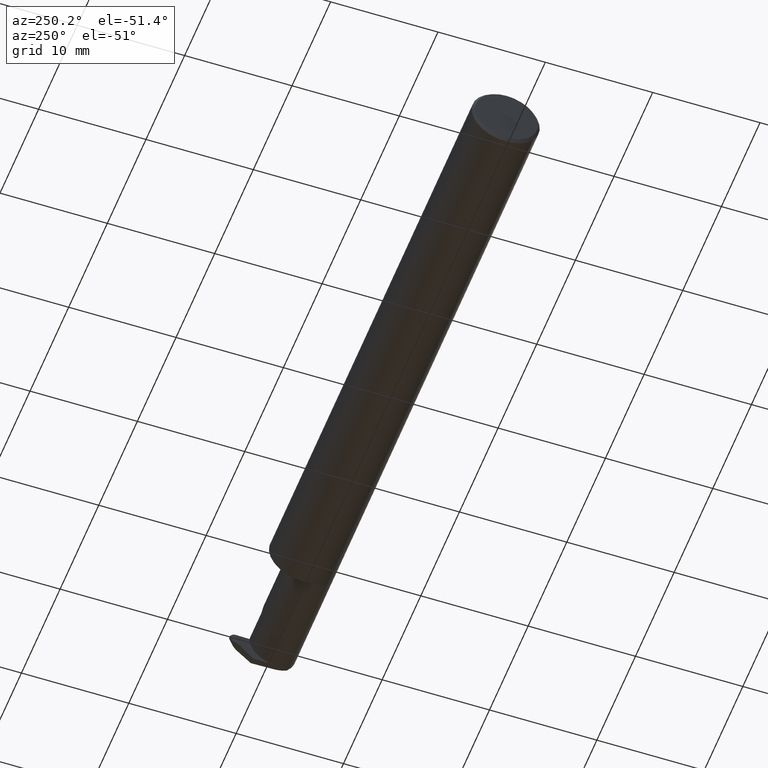
[diagram: clean part render]
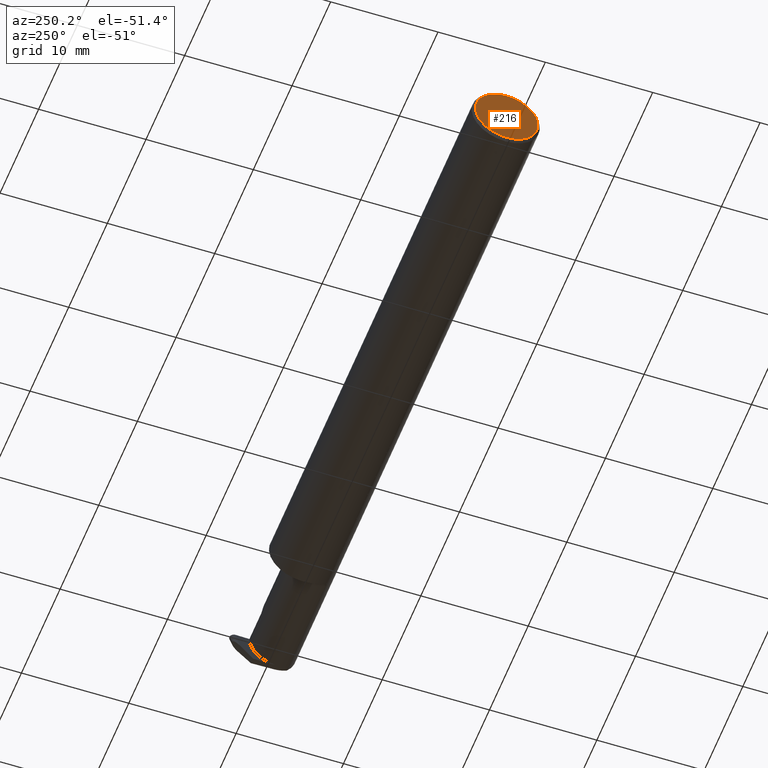
[diagram: same view with one face highlighted and labeled with its STEP entity id]
A machine part, auxiliary view. The second image highlights one B-rep face of the part: STEP entity #216.
In plain terms, the highlighted planar face has unit normal (1, 0, 0).
Its self-contained STEP definition (entity closure, byte-faithful):
#11 = EDGE_CURVE ( 'NONE', #380, #381, #247, .T. ) ;
#50 = PLANE ( 'NONE',  #330 ) ;
#52 = DIRECTION ( 'NONE',  ( -1.000000000000000000, -0.000000000000000000, -0.000000000000000000 ) ) ;
#197 = ORIENTED_EDGE ( 'NONE', *, *, #11, .T. ) ;
#216 = ADVANCED_FACE ( 'NONE', ( #404 ), #50, .F. ) ;
#220 = EDGE_LOOP ( 'NONE', ( #418, #197 ) ) ;
#247 = CIRCLE ( 'NONE', #258, 0.1149999999999997274 ) ;
#258 = AXIS2_PLACEMENT_3D ( 'NONE', #430, #52, #474 ) ;
#280 = DIRECTION ( 'NONE',  ( -1.000000000000000000, -0.000000000000000000, -0.000000000000000000 ) ) ;
#330 = AXIS2_PLACEMENT_3D ( 'NONE', #547, #352, #792 ) ;
#345 = DIRECTION ( 'NONE',  ( 0.000000000000000000, 0.000000000000000000, -1.000000000000000000 ) ) ;
#352 = DIRECTION ( 'NONE',  ( 1.000000000000000000, 0.000000000000000000, 0.000000000000000000 ) ) ;
#371 = AXIS2_PLACEMENT_3D ( 'NONE', #729, #280, #345 ) ;
#380 = VERTEX_POINT ( 'NONE', #564 ) ;
#381 = VERTEX_POINT ( 'NONE', #694 ) ;
#404 = FACE_OUTER_BOUND ( 'NONE', #220, .T. ) ;
#418 = ORIENTED_EDGE ( 'NONE', *, *, #677, .T. ) ;
#430 = CARTESIAN_POINT ( 'NONE',  ( 0.000000000000000000, 0.000000000000000000, 0.000000000000000000 ) ) ;
#474 = DIRECTION ( 'NONE',  ( 0.000000000000000000, 0.000000000000000000, -1.000000000000000000 ) ) ;
#547 = CARTESIAN_POINT ( 'NONE',  ( 0.000000000000000000, 0.000000000000000000, 0.000000000000000000 ) ) ;
#564 = CARTESIAN_POINT ( 'NONE',  ( 0.000000000000000000, 0.000000000000000000, -0.1149999999999997274 ) ) ;
#677 = EDGE_CURVE ( 'NONE', #381, #380, #688, .T. ) ;
#688 = CIRCLE ( 'NONE', #371, 0.1149999999999997274 ) ;
#694 = CARTESIAN_POINT ( 'NONE',  ( 0.000000000000000000, 3.414809992080329023E-17, 0.1149999999999999217 ) ) ;
#729 = CARTESIAN_POINT ( 'NONE',  ( 0.000000000000000000, 0.000000000000000000, 0.000000000000000000 ) ) ;
#792 = DIRECTION ( 'NONE',  ( 0.000000000000000000, 0.000000000000000000, -1.000000000000000000 ) ) ;